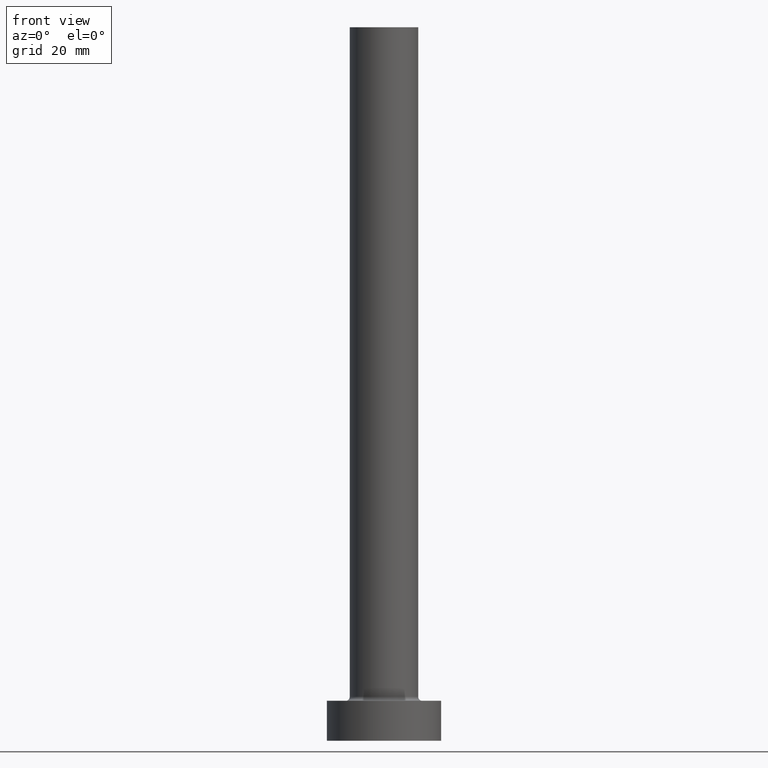
[diagram: clean part render]
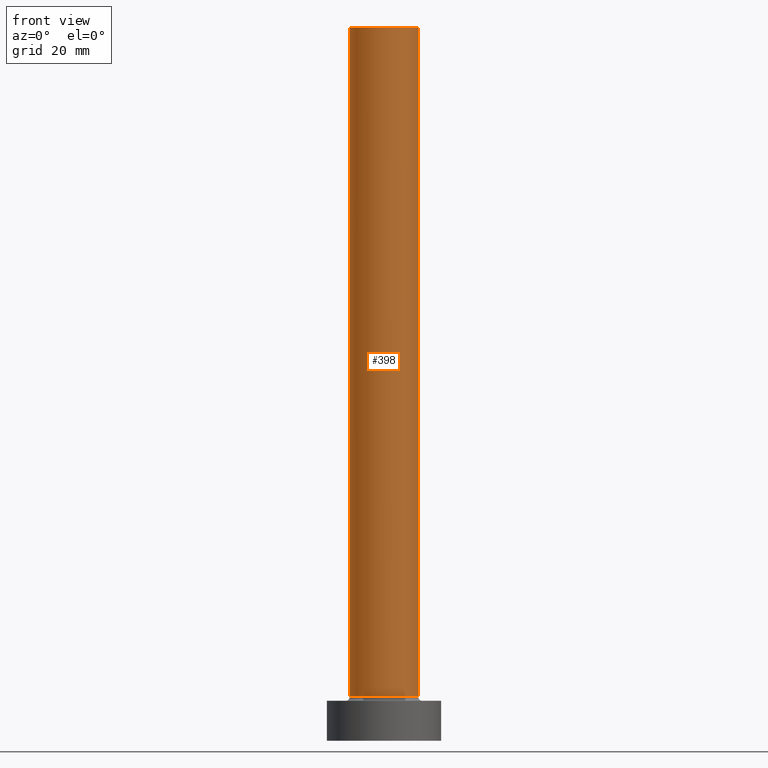
[diagram: same view with one face highlighted and labeled with its STEP entity id]
A machine part, front view. The second image highlights one B-rep face of the part: STEP entity #398.
In plain terms, the highlighted cylindrical surface (edge-blend (fillet) strip) has radius 6 mm, axis along (-0, -0, -1).
Its self-contained STEP definition (entity closure, byte-faithful):
#5 = DIRECTION ( 'NONE',  ( -1.000000000000000000, 0.000000000000000000, 0.000000000000000000 ) ) ;
#9 = VECTOR ( 'NONE', #151, 1000.000000000000000 ) ;
#18 = AXIS2_PLACEMENT_3D ( 'NONE', #392, #40, #363 ) ;
#37 = AXIS2_PLACEMENT_3D ( 'NONE', #278, #400, #173 ) ;
#40 = DIRECTION ( 'NONE',  ( 0.000000000000000000, 0.000000000000000000, 1.000000000000000000 ) ) ;
#68 = EDGE_LOOP ( 'NONE', ( #210, #127, #228, #327 ) ) ;
#74 = EDGE_CURVE ( 'NONE', #393, #279, #153, .T. ) ;
#78 = LINE ( 'NONE', #439, #92 ) ;
#92 = VECTOR ( 'NONE', #187, 1000.000000000000000 ) ;
#93 = EDGE_CURVE ( 'NONE', #276, #226, #405, .T. ) ;
#109 = FACE_OUTER_BOUND ( 'NONE', #68, .T. ) ;
#127 = ORIENTED_EDGE ( 'NONE', *, *, #93, .F. ) ;
#151 = DIRECTION ( 'NONE',  ( -0.000000000000000000, -0.000000000000000000, -1.000000000000000000 ) ) ;
#153 = CIRCLE ( 'NONE', #37, 6.000000000000000888 ) ;
#173 = DIRECTION ( 'NONE',  ( 1.000000000000000000, 0.000000000000000000, 0.000000000000000000 ) ) ;
#187 = DIRECTION ( 'NONE',  ( -0.000000000000000000, -0.000000000000000000, -1.000000000000000000 ) ) ;
#208 = CARTESIAN_POINT ( 'NONE',  ( -6.000000000000000888, 0.000000000000000000, 125.0000000000000000 ) ) ;
#210 = ORIENTED_EDGE ( 'NONE', *, *, #391, .F. ) ;
#219 = CARTESIAN_POINT ( 'NONE',  ( -6.000000000000000888, 0.000000000000000000, 7.699999999999998401 ) ) ;
#226 = VERTEX_POINT ( 'NONE', #356 ) ;
#228 = ORIENTED_EDGE ( 'NONE', *, *, #302, .T. ) ;
#276 = VERTEX_POINT ( 'NONE', #208 ) ;
#278 = CARTESIAN_POINT ( 'NONE',  ( 0.000000000000000000, 0.000000000000000000, 7.699999999999998401 ) ) ;
#279 = VERTEX_POINT ( 'NONE', #332 ) ;
#289 = CARTESIAN_POINT ( 'NONE',  ( -6.000000000000000888, 0.000000000000000000, 125.0000000000000000 ) ) ;
#302 = EDGE_CURVE ( 'NONE', #276, #393, #394, .T. ) ;
#309 = DIRECTION ( 'NONE',  ( -0.000000000000000000, -0.000000000000000000, -1.000000000000000000 ) ) ;
#327 = ORIENTED_EDGE ( 'NONE', *, *, #74, .T. ) ;
#332 = CARTESIAN_POINT ( 'NONE',  ( 6.000000000000000888, 7.347880794884120722E-16, 7.699999999999998401 ) ) ;
#356 = CARTESIAN_POINT ( 'NONE',  ( 6.000000000000000888, 7.347880794884120722E-16, 125.0000000000000000 ) ) ;
#363 = DIRECTION ( 'NONE',  ( 1.000000000000000000, 0.000000000000000000, 0.000000000000000000 ) ) ;
#365 = AXIS2_PLACEMENT_3D ( 'NONE', #435, #309, #5 ) ;
#391 = EDGE_CURVE ( 'NONE', #226, #279, #78, .T. ) ;
#392 = CARTESIAN_POINT ( 'NONE',  ( 0.000000000000000000, 0.000000000000000000, 125.0000000000000000 ) ) ;
#393 = VERTEX_POINT ( 'NONE', #219 ) ;
#394 = LINE ( 'NONE', #289, #9 ) ;
#398 = ADVANCED_FACE ( 'NONE', ( #109 ), #410, .T. ) ;
#400 = DIRECTION ( 'NONE',  ( 0.000000000000000000, 0.000000000000000000, 1.000000000000000000 ) ) ;
#405 = CIRCLE ( 'NONE', #18, 6.000000000000000888 ) ;
#410 = CYLINDRICAL_SURFACE ( 'NONE', #365, 6.000000000000000888 ) ;
#435 = CARTESIAN_POINT ( 'NONE',  ( 0.000000000000000000, 0.000000000000000000, 125.0000000000000000 ) ) ;
#439 = CARTESIAN_POINT ( 'NONE',  ( 6.000000000000000888, 7.347880794884120722E-16, 125.0000000000000000 ) ) ;